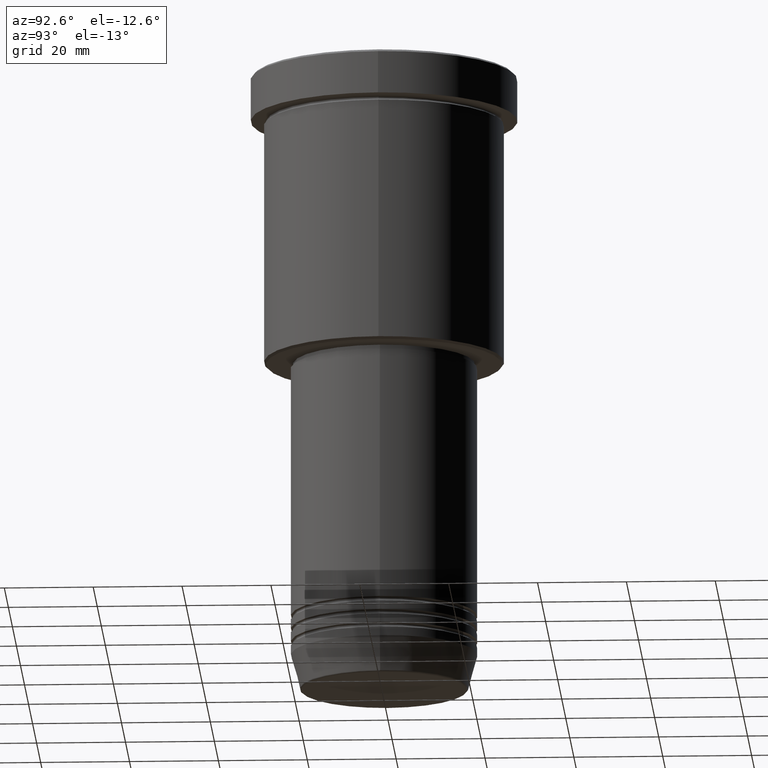
[diagram: clean part render]
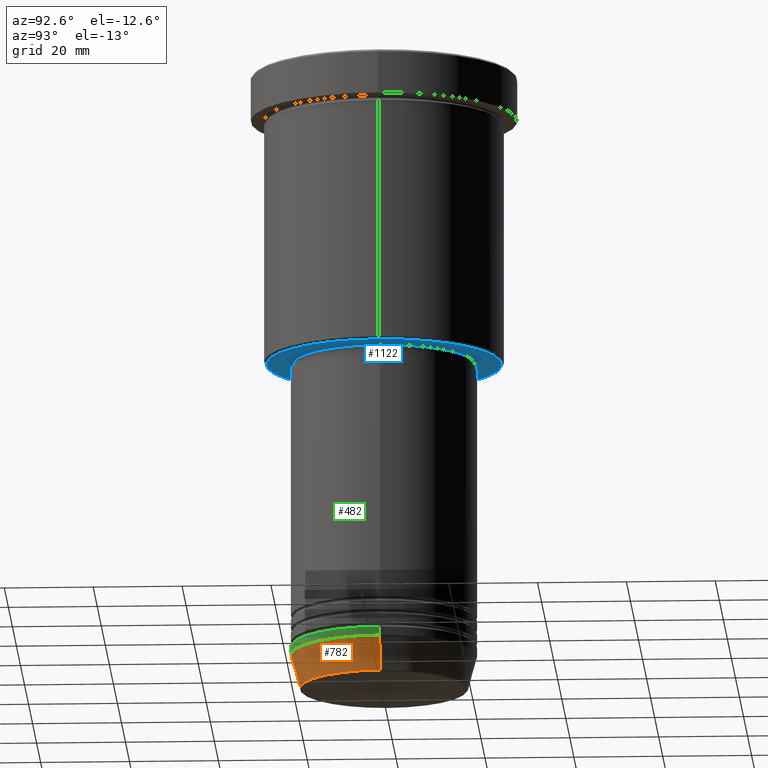
[diagram: same view with three faces highlighted in distinct colors, each labeled with its STEP entity id]
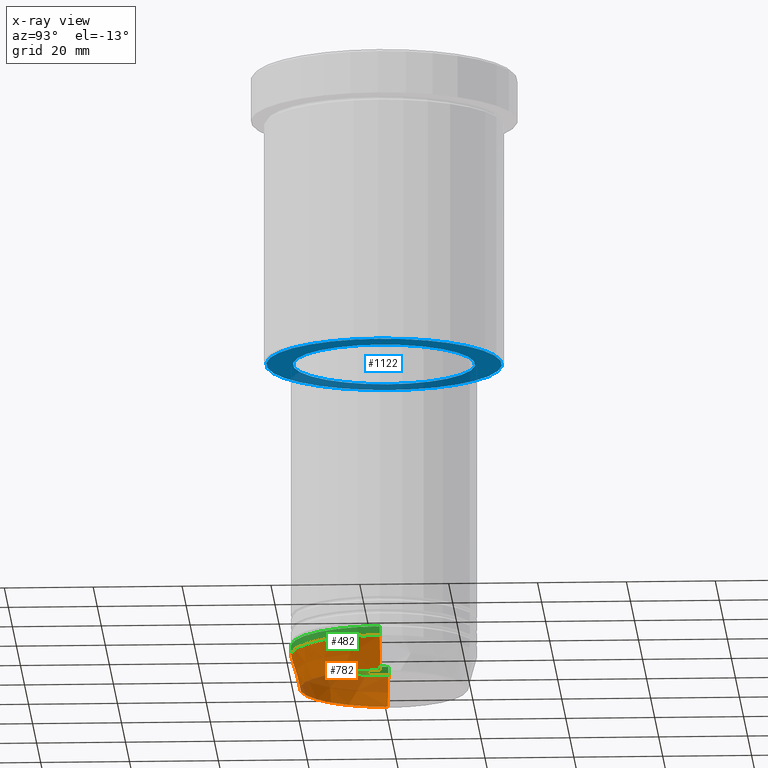
[diagram: x-ray of the same camera — body ghosted, the three highlighted faces saturated]
A machine part, auxiliary view with three faces highlighted in distinct colors.
The next image is the same camera in x-ray (body ghosted, the three faces saturated) — at least one of them is partly hidden behind the body in this view.
Their STEP definitions:

[orange] entity #782 — the highlighted conical surface has half-angle 15 deg.
#9 = CARTESIAN_POINT ( 'NONE',  ( -18.95570587970606269, 2.446581365662755730E-15, -140.6294095225512990 ) ) ;
#36 = DIRECTION ( 'NONE',  ( 1.000000000000000000, 0.000000000000000000, 0.000000000000000000 ) ) ;
#43 = DIRECTION ( 'NONE',  ( -0.2588190451025212391, 3.169619151431771721E-17, 0.9659258262890680902 ) ) ;
#75 = CARTESIAN_POINT ( 'NONE',  ( 0.000000000000000000, 0.000000000000000000, -133.0000000000000000 ) ) ;
#98 = CIRCLE ( 'NONE', #756, 21.00000000000000000 ) ;
#112 = VERTEX_POINT ( 'NONE', #9 ) ;
#124 = EDGE_CURVE ( 'NONE', #112, #532, #306, .T. ) ;
#181 = DIRECTION ( 'NONE',  ( 0.2588190451025212391, 0.000000000000000000, 0.9659258262890680902 ) ) ;
#189 = EDGE_CURVE ( 'NONE', #112, #784, #221, .T. ) ;
#195 = AXIS2_PLACEMENT_3D ( 'NONE', #587, #1153, #36 ) ;
#221 = LINE ( 'NONE', #877, #417 ) ;
#241 = ORIENTED_EDGE ( 'NONE', *, *, #921, .T. ) ;
#306 = CIRCLE ( 'NONE', #195, 18.95570587970606269 ) ;
#417 = VECTOR ( 'NONE', #43, 1000.000000000000114 ) ;
#425 = DIRECTION ( 'NONE',  ( 1.000000000000000000, 0.000000000000000000, 0.000000000000000000 ) ) ;
#440 = DIRECTION ( 'NONE',  ( -0.000000000000000000, -0.000000000000000000, 1.000000000000000000 ) ) ;
#532 = VERTEX_POINT ( 'NONE', #939 ) ;
#587 = CARTESIAN_POINT ( 'NONE',  ( 0.000000000000000000, 0.000000000000000000, -140.6294095225512990 ) ) ;
#593 = CONICAL_SURFACE ( 'NONE', #635, 21.00000000000000000, 0.2617993877991499629 ) ;
#609 = ORIENTED_EDGE ( 'NONE', *, *, #124, .T. ) ;
#635 = AXIS2_PLACEMENT_3D ( 'NONE', #75, #440, #723 ) ;
#662 = ORIENTED_EDGE ( 'NONE', *, *, #189, .F. ) ;
#670 = VERTEX_POINT ( 'NONE', #1167 ) ;
#718 = FACE_OUTER_BOUND ( 'NONE', #891, .T. ) ;
#723 = DIRECTION ( 'NONE',  ( 1.000000000000000000, 0.000000000000000000, 0.000000000000000000 ) ) ;
#756 = AXIS2_PLACEMENT_3D ( 'NONE', #1155, #973, #425 ) ;
#782 = ADVANCED_FACE ( 'NONE', ( #718 ), #593, .T. ) ;
#784 = VERTEX_POINT ( 'NONE', #1086 ) ;
#835 = VECTOR ( 'NONE', #181, 1000.000000000000114 ) ;
#877 = CARTESIAN_POINT ( 'NONE',  ( -21.00000000000000000, 2.571758278209441661E-15, -133.0000000000000000 ) ) ;
#891 = EDGE_LOOP ( 'NONE', ( #662, #609, #241, #897 ) ) ;
#897 = ORIENTED_EDGE ( 'NONE', *, *, #996, .F. ) ;
#921 = EDGE_CURVE ( 'NONE', #532, #670, #1094, .T. ) ;
#939 = CARTESIAN_POINT ( 'NONE',  ( 18.95570587970606269, 0.000000000000000000, -140.6294095225512990 ) ) ;
#973 = DIRECTION ( 'NONE',  ( -0.000000000000000000, -0.000000000000000000, 1.000000000000000000 ) ) ;
#996 = EDGE_CURVE ( 'NONE', #784, #670, #98, .T. ) ;
#1019 = CARTESIAN_POINT ( 'NONE',  ( 21.00000000000000000, 0.000000000000000000, -133.0000000000000000 ) ) ;
#1086 = CARTESIAN_POINT ( 'NONE',  ( -21.00000000000000000, 2.571758278209441661E-15, -133.0000000000000000 ) ) ;
#1094 = LINE ( 'NONE', #1019, #835 ) ;
#1153 = DIRECTION ( 'NONE',  ( -0.000000000000000000, -0.000000000000000000, 1.000000000000000000 ) ) ;
#1155 = CARTESIAN_POINT ( 'NONE',  ( 0.000000000000000000, 0.000000000000000000, -133.0000000000000000 ) ) ;
#1167 = CARTESIAN_POINT ( 'NONE',  ( 21.00000000000000000, 0.000000000000000000, -133.0000000000000000 ) ) ;

[blue] entity #1122 — the highlighted planar face has unit normal (0, 0, -1).
#30 = VERTEX_POINT ( 'NONE', #1016 ) ;
#37 = AXIS2_PLACEMENT_3D ( 'NONE', #61, #592, #152 ) ;
#56 = PLANE ( 'NONE',  #520 ) ;
#61 = CARTESIAN_POINT ( 'NONE',  ( 0.000000000000000000, 0.000000000000000000, -66.00000000000000000 ) ) ;
#87 = ORIENTED_EDGE ( 'NONE', *, *, #717, .T. ) ;
#146 = FACE_OUTER_BOUND ( 'NONE', #705, .T. ) ;
#152 = DIRECTION ( 'NONE',  ( 1.000000000000000000, 0.000000000000000000, 0.000000000000000000 ) ) ;
#164 = DIRECTION ( 'NONE',  ( -1.000000000000000000, 0.000000000000000000, 0.000000000000000000 ) ) ;
#219 = EDGE_CURVE ( 'NONE', #937, #858, #964, .T. ) ;
#234 = CARTESIAN_POINT ( 'NONE',  ( 0.000000000000000000, 0.000000000000000000, -66.00000000000000000 ) ) ;
#250 = AXIS2_PLACEMENT_3D ( 'NONE', #234, #869, #601 ) ;
#291 = CARTESIAN_POINT ( 'NONE',  ( 26.49999999999999645, 0.000000000000000000, -66.00000000000000000 ) ) ;
#293 = ORIENTED_EDGE ( 'NONE', *, *, #749, .T. ) ;
#314 = ORIENTED_EDGE ( 'NONE', *, *, #219, .T. ) ;
#352 = CARTESIAN_POINT ( 'NONE',  ( -20.50000000000000000, 2.510525938252074481E-15, -66.00000000000000000 ) ) ;
#356 = CARTESIAN_POINT ( 'NONE',  ( 0.000000000000000000, 0.000000000000000000, -66.00000000000000000 ) ) ;
#419 = CARTESIAN_POINT ( 'NONE',  ( 0.000000000000000000, 27.00000000000000355, -66.00000000000000000 ) ) ;
#424 = DIRECTION ( 'NONE',  ( -1.000000000000000000, 0.000000000000000000, 0.000000000000000000 ) ) ;
#447 = DIRECTION ( 'NONE',  ( 0.000000000000000000, 0.000000000000000000, -1.000000000000000000 ) ) ;
#497 = AXIS2_PLACEMENT_3D ( 'NONE', #703, #528, #424 ) ;
#510 = DIRECTION ( 'NONE',  ( 0.000000000000000000, 0.000000000000000000, -1.000000000000000000 ) ) ;
#520 = AXIS2_PLACEMENT_3D ( 'NONE', #419, #510, #1168 ) ;
#528 = DIRECTION ( 'NONE',  ( 0.000000000000000000, 0.000000000000000000, -1.000000000000000000 ) ) ;
#554 = ORIENTED_EDGE ( 'NONE', *, *, #602, .T. ) ;
#579 = VERTEX_POINT ( 'NONE', #291 ) ;
#592 = DIRECTION ( 'NONE',  ( -0.000000000000000000, -0.000000000000000000, 1.000000000000000000 ) ) ;
#601 = DIRECTION ( 'NONE',  ( 1.000000000000000000, 0.000000000000000000, 0.000000000000000000 ) ) ;
#602 = EDGE_CURVE ( 'NONE', #579, #30, #1096, .T. ) ;
#703 = CARTESIAN_POINT ( 'NONE',  ( 0.000000000000000000, 0.000000000000000000, -66.00000000000000000 ) ) ;
#705 = EDGE_LOOP ( 'NONE', ( #554, #293 ) ) ;
#717 = EDGE_CURVE ( 'NONE', #858, #937, #789, .T. ) ;
#736 = AXIS2_PLACEMENT_3D ( 'NONE', #356, #447, #164 ) ;
#749 = EDGE_CURVE ( 'NONE', #30, #579, #1145, .T. ) ;
#789 = CIRCLE ( 'NONE', #37, 20.50000000000000000 ) ;
#858 = VERTEX_POINT ( 'NONE', #918 ) ;
#869 = DIRECTION ( 'NONE',  ( -0.000000000000000000, -0.000000000000000000, 1.000000000000000000 ) ) ;
#888 = FACE_BOUND ( 'NONE', #1172, .T. ) ;
#918 = CARTESIAN_POINT ( 'NONE',  ( 20.50000000000000000, 0.000000000000000000, -66.00000000000000000 ) ) ;
#937 = VERTEX_POINT ( 'NONE', #352 ) ;
#964 = CIRCLE ( 'NONE', #250, 20.50000000000000000 ) ;
#1016 = CARTESIAN_POINT ( 'NONE',  ( -26.49999999999999645, 3.275930187719169552E-15, -66.00000000000000000 ) ) ;
#1096 = CIRCLE ( 'NONE', #497, 26.49999999999999645 ) ;
#1122 = ADVANCED_FACE ( 'NONE', ( #146, #888 ), #56, .T. ) ;
#1145 = CIRCLE ( 'NONE', #736, 26.49999999999999645 ) ;
#1168 = DIRECTION ( 'NONE',  ( -1.000000000000000000, 0.000000000000000000, -0.000000000000000000 ) ) ;
#1172 = EDGE_LOOP ( 'NONE', ( #87, #314 ) ) ;

[green] entity #482 — the highlighted cylindrical surface (partial cylindrical patch) has radius 21 mm, axis along (-0, -0, 1).
#41 = FACE_OUTER_BOUND ( 'NONE', #999, .T. ) ;
#45 = CARTESIAN_POINT ( 'NONE',  ( -21.00000000000000000, 2.571758278209441661E-15, -131.0000000000000000 ) ) ;
#98 = CIRCLE ( 'NONE', #756, 21.00000000000000000 ) ;
#205 = ORIENTED_EDGE ( 'NONE', *, *, #903, .T. ) ;
#275 = CARTESIAN_POINT ( 'NONE',  ( 0.000000000000000000, 0.000000000000000000, -131.0000000000000000 ) ) ;
#285 = VECTOR ( 'NONE', #309, 1000.000000000000000 ) ;
#309 = DIRECTION ( 'NONE',  ( -0.000000000000000000, -0.000000000000000000, 1.000000000000000000 ) ) ;
#343 = CIRCLE ( 'NONE', #1097, 21.00000000000000000 ) ;
#397 = CARTESIAN_POINT ( 'NONE',  ( -21.00000000000000000, 2.571758278209441661E-15, 0.000000000000000000 ) ) ;
#404 = CARTESIAN_POINT ( 'NONE',  ( 0.000000000000000000, 0.000000000000000000, 0.000000000000000000 ) ) ;
#425 = DIRECTION ( 'NONE',  ( 1.000000000000000000, 0.000000000000000000, 0.000000000000000000 ) ) ;
#449 = DIRECTION ( 'NONE',  ( -0.000000000000000000, -0.000000000000000000, 1.000000000000000000 ) ) ;
#467 = ORIENTED_EDGE ( 'NONE', *, *, #513, .F. ) ;
#482 = ADVANCED_FACE ( 'NONE', ( #41 ), #1035, .T. ) ;
#492 = CARTESIAN_POINT ( 'NONE',  ( 21.00000000000000000, 0.000000000000000000, -131.0000000000000000 ) ) ;
#506 = VERTEX_POINT ( 'NONE', #492 ) ;
#513 = EDGE_CURVE ( 'NONE', #784, #669, #862, .T. ) ;
#646 = DIRECTION ( 'NONE',  ( -0.000000000000000000, -0.000000000000000000, 1.000000000000000000 ) ) ;
#656 = VECTOR ( 'NONE', #449, 1000.000000000000000 ) ;
#669 = VERTEX_POINT ( 'NONE', #45 ) ;
#670 = VERTEX_POINT ( 'NONE', #1167 ) ;
#721 = ORIENTED_EDGE ( 'NONE', *, *, #996, .T. ) ;
#725 = CARTESIAN_POINT ( 'NONE',  ( 21.00000000000000000, 0.000000000000000000, 0.000000000000000000 ) ) ;
#756 = AXIS2_PLACEMENT_3D ( 'NONE', #1155, #973, #425 ) ;
#765 = DIRECTION ( 'NONE',  ( -0.000000000000000000, -0.000000000000000000, 1.000000000000000000 ) ) ;
#784 = VERTEX_POINT ( 'NONE', #1086 ) ;
#842 = EDGE_CURVE ( 'NONE', #669, #506, #343, .T. ) ;
#862 = LINE ( 'NONE', #397, #285 ) ;
#903 = EDGE_CURVE ( 'NONE', #670, #506, #1011, .T. ) ;
#908 = DIRECTION ( 'NONE',  ( 1.000000000000000000, 0.000000000000000000, 0.000000000000000000 ) ) ;
#948 = AXIS2_PLACEMENT_3D ( 'NONE', #404, #765, #1026 ) ;
#973 = DIRECTION ( 'NONE',  ( -0.000000000000000000, -0.000000000000000000, 1.000000000000000000 ) ) ;
#996 = EDGE_CURVE ( 'NONE', #784, #670, #98, .T. ) ;
#999 = EDGE_LOOP ( 'NONE', ( #467, #721, #205, #1136 ) ) ;
#1011 = LINE ( 'NONE', #725, #656 ) ;
#1026 = DIRECTION ( 'NONE',  ( 1.000000000000000000, 0.000000000000000000, 0.000000000000000000 ) ) ;
#1035 = CYLINDRICAL_SURFACE ( 'NONE', #948, 21.00000000000000000 ) ;
#1086 = CARTESIAN_POINT ( 'NONE',  ( -21.00000000000000000, 2.571758278209441661E-15, -133.0000000000000000 ) ) ;
#1097 = AXIS2_PLACEMENT_3D ( 'NONE', #275, #646, #908 ) ;
#1136 = ORIENTED_EDGE ( 'NONE', *, *, #842, .F. ) ;
#1155 = CARTESIAN_POINT ( 'NONE',  ( 0.000000000000000000, 0.000000000000000000, -133.0000000000000000 ) ) ;
#1167 = CARTESIAN_POINT ( 'NONE',  ( 21.00000000000000000, 0.000000000000000000, -133.0000000000000000 ) ) ;